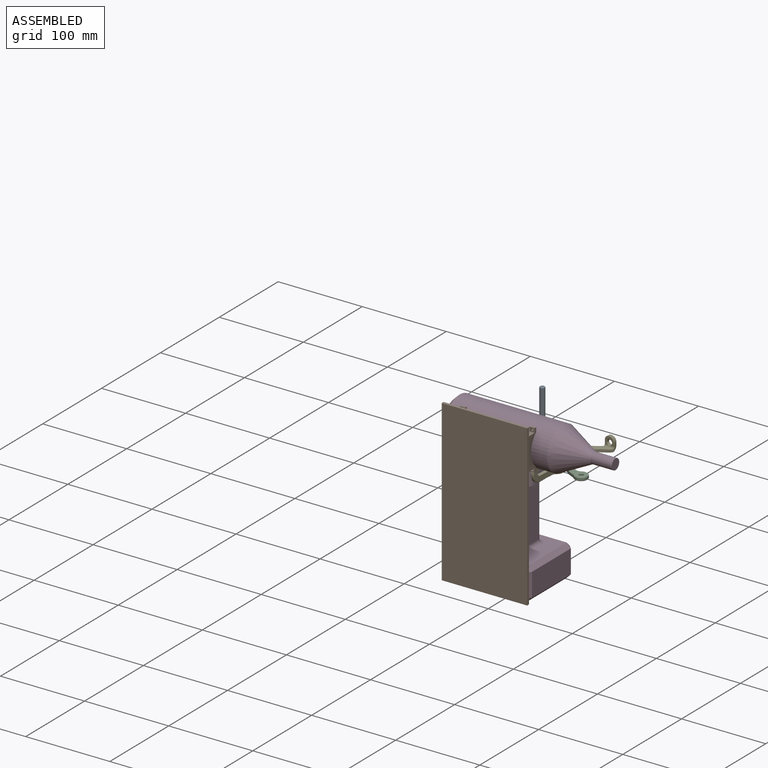
[diagram: assembled view]
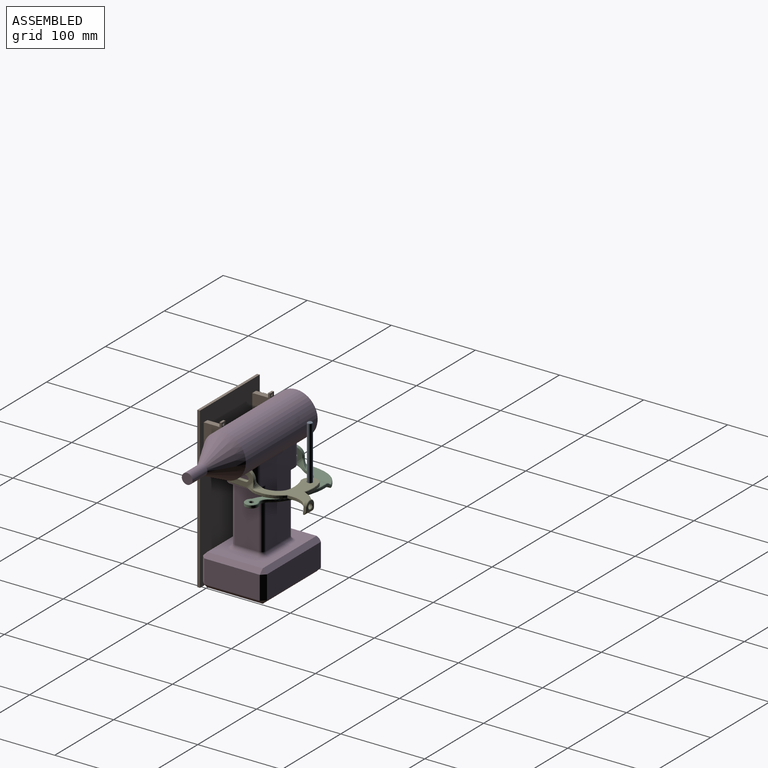
[diagram: assembled view, second angle]
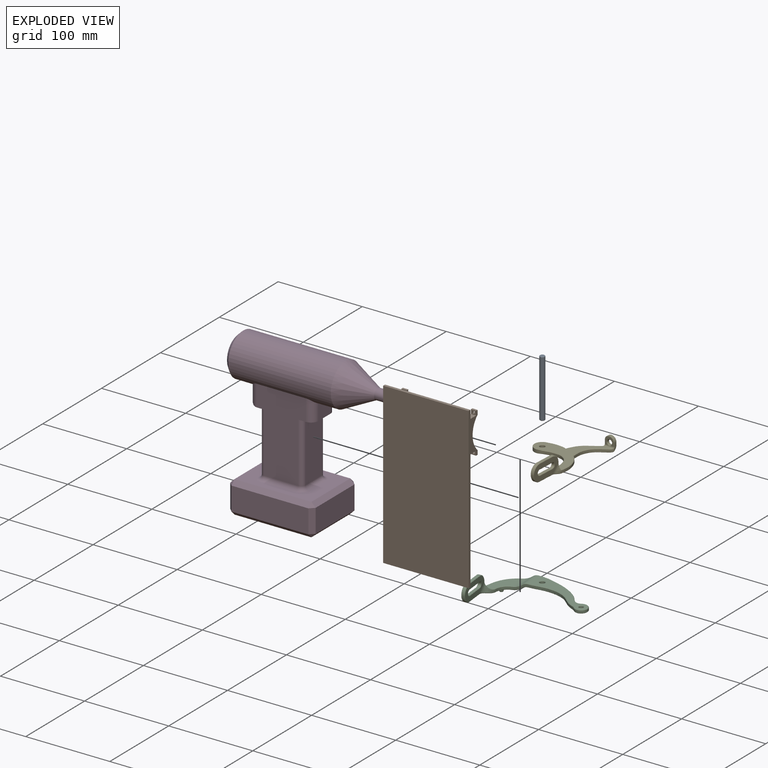
[diagram: exploded view]
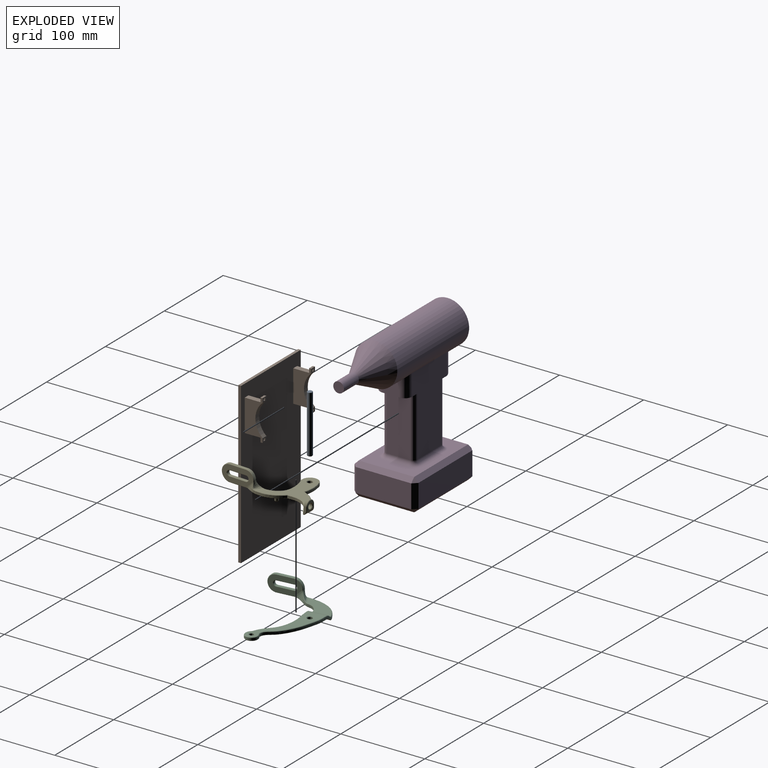
[diagram: exploded view, second angle]
ASSEMBLY  parts=5 mates=3
PART A: 5 faces, bbox 6x69x6 mm
  f0: plane 5x5mm, normal (0,1,0), area 19.6mm2, adj f1
  f1: cone r=2.75mm half-angle=45deg, axis (0,-1,0), area 12.2mm2, adj f0,f3
  f2: plane 5x5mm, normal (0,-1,0), area 19.6mm2, adj f4
  f3: cylinder r=3mm len=68mm, axis (0,-1,0), area 1281.8mm2, adj f1,f4
  f4: cone r=2.75mm half-angle=45deg, axis (0,1,0), area 12.2mm2, adj f2,f3
PART B: 44 faces, bbox 101.6x24.5x190.5 mm
  f0: plane 6.35x5.08mm, normal (0,1,0), area 25.8mm2, adj f10,f14,f15,f16,f21,f22,f23,f24
  f1: plane 6.35x5.08mm, normal (0,-1,0), area 25.8mm2, adj f10,f11,f15,f16,f21,f22,f23,f24
  f2: plane 6.35x5.08mm, normal (0,-1,0), area 25.8mm2, adj f12,f13,f15,f16,f17,f18,f19,f20
  f3: plane 6.35x5.08mm, normal (0,1,0), area 25.8mm2, adj f13,f14,f15,f16,f17,f18,f19,f20
  f4: plane 101.6x3.18mm, normal (0,0,-1), area 322.6mm2, adj f5,f7,f8,f9
  f5: plane 190.5x3.18mm, normal (1,0,0), area 604.8mm2, adj f4,f6,f8,f9
  f6: plane 101.6x3.18mm, normal (0,0,1), area 322.6mm2, adj f5,f7,f8,f9
  f7: plane 190.5x3.18mm, normal (-1,0,0), area 604.8mm2, adj f4,f6,f8,f9
  f8: plane 190.5x101.6mm, normal (0,-1,0), area 19354.8mm2, adj f4,f5,f6,f7
  f9: plane 190.5x101.6mm, normal (0,1,0), area 18870.9mm2, adj f4,f5,f6,f7,f11,f12,f15,f16
  f10: plane 6.35x2.54mm, normal (0,0,1), area 16.1mm2, adj f0,f1,f15,f16
  f11: plane 18.76x6.35mm, normal (0,0,1), area 119.1mm2, adj f1,f9,f15,f16
  f12: plane 18.76x6.35mm, normal (0,0,-1), area 119.1mm2, adj f2,f9,f15,f16
  f13: plane 6.35x2.54mm, normal (0,0,-1), area 16.1mm2, adj f2,f3,f15,f16
  f14: cylinder r=25.4mm len=38.1mm, axis (-1,0,0), area 273.6mm2, adj f0,f3,f15,f16
  f15: plane 48.26x21.3mm, normal (1,0,0), area 610.2mm2, adj f0,f1,f2,f3,f9,f10,f11,f12
  f16: plane 48.26x21.3mm, normal (-1,0,0), area 610.2mm2, adj f0,f1,f2,f3,f9,f10,f11,f12
  f17: plane 2.54x2.54mm, normal (1,0,0), area 6.5mm2, adj f2,f3,f18,f20
  f18: plane 2.54x2.54mm, normal (0,0,-1), area 6.5mm2, adj f2,f3,f17,f19
  f19: plane 2.54x2.54mm, normal (-1,0,0), area 6.5mm2, adj f2,f3,f18,f20
  f20: plane 2.54x2.54mm, normal (0,0,1), area 6.5mm2, adj f2,f3,f17,f19
  f21: plane 2.54x2.54mm, normal (1,0,0), area 6.5mm2, adj f0,f1,f22,f24
  f22: plane 2.54x2.54mm, normal (0,0,-1), area 6.5mm2, adj f0,f1,f21,f23
  f23: plane 2.54x2.54mm, normal (-1,0,0), area 6.5mm2, adj f0,f1,f22,f24
  f24: plane 2.54x2.54mm, normal (0,0,1), area 6.5mm2, adj f0,f1,f21,f23
  f25: plane 6.35x5.08mm, normal (0,1,0), area 25.8mm2, adj f26,f33,f34,f35,f36,f37,f38,f39
  f26: cylinder r=25.4mm len=38.1mm, axis (1,0,0), area 273.6mm2, adj f25,f27,f34,f35
  f27: plane 6.35x5.08mm, normal (0,1,0), area 25.8mm2, adj f26,f28,f34,f35,f40,f41,f42,f43
  f28: plane 6.35x2.54mm, normal (0,0,-1), area 16.1mm2, adj f27,f29,f34,f35
  f29: plane 6.35x5.08mm, normal (0,-1,0), area 25.8mm2, adj f28,f30,f34,f35,f40,f41,f42,f43
  f30: plane 18.76x6.35mm, normal (0,0,-1), area 119.1mm2, adj f9,f29,f34,f35
  f31: plane 18.76x6.35mm, normal (0,0,1), area 119.1mm2, adj f9,f32,f34,f35
  f32: plane 6.35x5.08mm, normal (0,-1,0), area 25.8mm2, adj f31,f33,f34,f35,f36,f37,f38,f39
  f33: plane 6.35x2.54mm, normal (0,0,1), area 16.1mm2, adj f25,f32,f34,f35
  f34: plane 48.26x21.3mm, normal (-1,0,0), area 610.2mm2, adj f9,f25,f26,f27,f28,f29,f30,f31
  f35: plane 48.26x21.3mm, normal (1,0,0), area 610.2mm2, adj f9,f25,f26,f27,f28,f29,f30,f31
  f36: plane 2.54x2.54mm, normal (-1,0,0), area 6.5mm2, adj f25,f32,f37,f39
  f37: plane 2.54x2.54mm, normal (0,0,1), area 6.5mm2, adj f25,f32,f36,f38
  f38: plane 2.54x2.54mm, normal (1,0,0), area 6.5mm2, adj f25,f32,f37,f39
  f39: plane 2.54x2.54mm, normal (0,0,-1), area 6.5mm2, adj f25,f32,f36,f38
  f40: plane 2.54x2.54mm, normal (-1,0,0), area 6.5mm2, adj f27,f29,f41,f43
  f41: plane 2.54x2.54mm, normal (0,0,1), area 6.5mm2, adj f27,f29,f40,f42
  f42: plane 2.54x2.54mm, normal (1,0,0), area 6.5mm2, adj f27,f29,f41,f43
  f43: plane 2.54x2.54mm, normal (0,0,-1), area 6.5mm2, adj f27,f29,f40,f42
PART C: 85 faces, bbox 120.5x29x85.4 mm
  f0: plane 20x3.1mm, normal (0,-1,0), area 62mm2, adj f1,f3,f8,f16
  f1: cylinder r=3mm len=6mm, axis (1,0,0), area 29.2mm2, adj f0,f2,f11,f17
  f2: plane 20x3.1mm, normal (0,1,0), area 62mm2, adj f1,f3,f10,f18
  f3: cylinder r=3mm len=6mm, axis (1,0,0), area 29.2mm2, adj f0,f2,f9,f19
  f4: cylinder r=2.5mm len=5mm, axis (0,1,0), area 47.1mm2, adj f13,f22
  f5: cylinder r=3mm len=6mm, axis (0,1,0), area 56.5mm2, adj f14,f23
  f6: cylinder r=10mm len=10mm, axis (1,0,0), area 48.7mm2, adj f12,f20,f21,f24
  f7: plane 20x0.5mm, normal (-0.71,-0.71,0), area 14.1mm2, adj f12,f24,f25,f26
  f8: plane 20x0.5mm, normal (-0.71,-0.71,0), area 14.1mm2, adj f0,f9,f11,f26
  f9: cone r=3.25mm half-angle=45deg, axis (-1,0,0), area 7.2mm2, adj f3,f8,f10,f26
  f10: plane 20x0.5mm, normal (-0.71,0.71,0), area 14.1mm2, adj f2,f9,f11,f26
  f11: cone r=3.25mm half-angle=45deg, axis (-1,0,0), area 7.2mm2, adj f1,f8,f10,f26
  f12: cone r=9.75mm half-angle=45deg, axis (1,0,0), area 11mm2, adj f6,f7,f26,f27
  f13: cone r=2.75mm half-angle=45deg, axis (0,-1,0), area 12.2mm2, adj f4,f32
  f14: cone r=3.25mm half-angle=45deg, axis (0,-1,0), area 14.4mm2, adj f5,f32
  f15: plane 20x0.5mm, normal (0.71,-0.71,0), area 14.1mm2, adj f20,f24,f28,f38
  f16: plane 20x0.5mm, normal (0.71,-0.71,0), area 14.1mm2, adj f0,f17,f19,f38
  f17: cone r=3.25mm half-angle=45deg, axis (1,0,0), area 7.2mm2, adj f1,f16,f18,f38
  f18: plane 20x0.5mm, normal (0.71,0.71,0), area 14.1mm2, adj f2,f17,f19,f38
  f19: cone r=3.25mm half-angle=45deg, axis (1,0,0), area 7.2mm2, adj f3,f16,f18,f38
  f20: cone r=9.75mm half-angle=45deg, axis (-1,0,0), area 11mm2, adj f6,f15,f38,f39
  f21: bspline ~12.1x10mm, area 80.7mm2, adj f6,f27,f37,f39
  f22: cone r=2.75mm half-angle=45deg, axis (0,1,0), area 12.2mm2, adj f4,f41
  f23: cone r=3.25mm half-angle=45deg, axis (0,1,0), area 14.4mm2, adj f5,f41
  f24: plane 20x3.1mm, normal (0,-1,0), area 62mm2, adj f6,f7,f15,f53
  f25: cone r=9.75mm half-angle=45deg, axis (1,0,0), area 21.7mm2, adj f7,f26,f53,f54
  f26: plane 39x19mm, normal (-1,0,0), area 463.9mm2, adj f7,f8,f9,f10,f11,f12,f25,f54
  f27: bspline ~10.5x2.95mm, area 7.8mm2, adj f12,f21,f42,f55
  f28: cone r=9.75mm half-angle=45deg, axis (-1,0,0), area 21.7mm2, adj f15,f38,f53,f56
  f29: plane 0.52x0.52mm, normal (-0.01,0.71,-0.71), area 0mm2, adj f41,f57,f58,f74
  f30: cone r=7.25mm half-angle=45deg, axis (0,-1,0), area 24.2mm2, adj f41,f49,f58,f59
  f31: cone r=7.25mm half-angle=45deg, axis (0,1,0), area 24.2mm2, adj f32,f48,f59,f60
  f32: plane 78.08x50.03mm, normal (0,-1,0), area 1011.3mm2, adj f13,f14,f31,f34,f48,f60
  f33: plane 0.51x0.51mm, normal (-0.01,-0.71,-0.71), area 0mm2, adj f60,f61
  f34: cylinder r=10.97mm len=21.7mm, axis (0,0,1), area 164mm2, adj f32,f36,f45,f46,f47,f61
  f35: plane 0.5x0.4mm, normal (-0.43,-0.55,-0.71), area 0mm2, adj f36,f61,f62,f74
  f36: cylinder r=15.15mm len=22.76mm, axis (0,0,1), area 220mm2, adj f34,f35,f37,f43,f44,f62
  f37: plane 39.84x24.3mm, normal (0,-1,0), area 471.6mm2, adj f21,f36,f42,f63,f64
  f38: plane 39x19mm, normal (1,0,0), area 463.9mm2, adj f15,f16,f17,f18,f19,f20,f28,f56
  f39: bspline ~10.5x8.78mm, area 10.6mm2, adj f20,f21,f64,f65
  f40: plane 0.52x0.42mm, normal (0.47,0.54,-0.7), area 0mm2, adj f57,f66,f74,f76
  f41: plane 78.1x50.04mm, normal (0,1,0), area 1011.4mm2, adj f22,f23,f29,f30,f49,f58,f68
  f42: bspline ~40.63x24.85mm, area 35.3mm2, adj f27,f37,f43,f69
  f43: cylinder r=695.36mm len=0.78mm, axis (0.34,0.56,0.76), area 0.2mm2, adj f36,f42,f44,f69
  f44: bspline ~10.17x4.05mm, area 8mm2, adj f36,f43,f45,f69
  f45: cylinder r=7.01mm len=0.53mm, axis (-0.37,-0.59,-0.72), area 0mm2, adj f34,f44,f46,f69
  f46: bspline ~7.11x2.96mm, area 5.2mm2, adj f34,f45,f47,f69
  f47: plane 0.5x0.5mm, normal (0.05,-0.71,0.71), area 0mm2, adj f34,f46,f48,f69
  f48: bspline ~67.72x37.92mm, area 56.8mm2, adj f31,f32,f47,f69
  f49: bspline ~67.74x37.92mm, area 56.7mm2, adj f30,f41,f50,f69
  f50: plane 0.51x0.51mm, normal (0.05,0.71,0.71), area 0mm2, adj f49,f51,f68,f69
  f51: cone r=0mm half-angle=56.2deg, axis (0.07,0.18,0.98), area 5.4mm2, adj f50,f52,f68,f69
  f52: plane 0.49x0.4mm, normal (0.4,0.56,0.72), area 0mm2, adj f51,f67,f68,f69
  f53: cylinder r=10mm len=20mm, axis (-1,0,0), area 97.4mm2, adj f24,f25,f28,f71
  f54: plane 20.5x0.5mm, normal (-0.71,0.71,0), area 14.3mm2, adj f25,f26,f71,f72
  f55: bspline ~12.99x11.49mm, area 63.2mm2, adj f26,f27,f69,f72
  f56: plane 20.5x0.5mm, normal (0.71,0.71,0), area 14.3mm2, adj f28,f38,f71,f73
  f57: bspline ~7.44x3.08mm, area 5.5mm2, adj f29,f40,f68,f74
  f58: bspline ~65.02x25.94mm, area 51.5mm2, adj f29,f30,f41,f74
  f59: cylinder r=7.5mm len=15mm, axis (0,1,0), area 105.8mm2, adj f30,f31,f69,f74
  f60: bspline ~65.01x25.96mm, area 51.5mm2, adj f31,f32,f33,f74
  f61: sphere r=16.29mm, area 5.2mm2, adj f33,f34,f35,f74
  f62: bspline ~10.17x4.04mm, area 7.4mm2, adj f35,f36,f63,f74
  f63: cylinder r=155.72mm len=0.56mm, axis (-0.41,-0.68,0.61), area 0.1mm2, adj f37,f62,f64,f74
  f64: bspline ~14.42x12.66mm, area 13.9mm2, adj f37,f39,f63,f74
  f65: bspline ~17.76x12.99mm, area 93.5mm2, adj f38,f39,f73,f74
  f66: cylinder r=27.18mm len=9.89mm, axis (0.36,0.6,0.72), area 7.4mm2, adj f40,f74,f75,f76
  f67: bspline ~9.84x3.92mm, area 7.2mm2, adj f52,f69,f70,f76
  f68: cylinder r=10.97mm len=21.7mm, axis (0,0,1), area 163.9mm2, adj f41,f50,f51,f52,f57,f76
  f69: extruded ~108.97x43.42mm, area 443.9mm2, adj f42,f43,f44,f45,f46,f47,f48,f49
  f70: plane 0.55x0.5mm, normal (-0.28,0.71,0.65), area 0.2mm2, adj f67,f69,f76,f77
  f71: plane 20x3.1mm, normal (0,1,0), area 62mm2, adj f53,f54,f56,f78
  f72: bspline ~12.24x4.5mm, area 9.3mm2, adj f54,f55,f77,f78
  f73: bspline ~18.26x7.38mm, area 14.5mm2, adj f56,f65,f78,f79
  f74: extruded ~93.12x25.29mm, area 324mm2, adj f29,f35,f40,f57,f58,f59,f60,f61
  f75: sphere r=504449.16mm, area 0.1mm2, adj f66,f74,f79,f80
  f76: cylinder r=15.15mm len=22.76mm, axis (0,0,1), area 220mm2, adj f40,f66,f67,f68,f70,f80
  f77: bspline ~40.66x24.93mm, area 35.3mm2, adj f69,f70,f72,f80
  f78: bspline ~17.94x11.76mm, area 100.4mm2, adj f71,f72,f73,f80
  f79: bspline ~14.42x12.64mm, area 13.8mm2, adj f73,f74,f75,f80
  f80: plane 39.84x24.3mm, normal (0,1,0), area 434.9mm2, adj f75,f76,f77,f78,f79,f81
  f81: torus R=3.42mm, axis (0,-1,0), area 26.1mm2, adj f80,f83
  f82: plane 2.29x2.29mm, normal (0,1,0), area 4.1mm2, adj f84
  f83: cone r=2.5mm half-angle=5deg, axis (0,-1,0), area 45.7mm2, adj f81,f84
  f84: torus R=1.15mm, axis (0,-1,0), area 16.4mm2, adj f82,f83
PART D: 57 faces, bbox 190.5x76.2x181.9 mm
  f0: plane 71.12x27.94mm, normal (1,0,0), area 1987.1mm2, adj f7,f42,f46,f48
  f1: plane 96.52x58.42mm, normal (0,1,0), area 4374.2mm2, adj f4,f7,f8,f39,f45,f48,f51,f52
  f2: plane 71.12x27.94mm, normal (-1,0,0), area 1987.1mm2, adj f4,f37,f39,f40
  f3: plane 96.52x58.42mm, normal (0,-1,0), area 4374.2mm2, adj f4,f7,f8,f37,f41,f42,f49,f53
  f4: plane 38.1x17.78mm, normal (0,0,-1), area 461mm2, adj f1,f2,f3,f6,f37,f39,f52,f53
  f5: plane 20.32x10.03mm, normal (1,0,0), area 174.9mm2, adj f8,f49,f50,f51
  f6: plane 20.32x18.92mm, normal (-1,0,0), area 355.5mm2, adj f4,f8,f52,f53
  f7: plane 38.1x8.89mm, normal (0,0,-1), area 156.2mm2, adj f0,f1,f3,f42,f48,f50
  f8: cylinder r=25.4mm len=121.92mm, axis (-1,0,0), area 16267.4mm2, adj f1,f3,f5,f6,f16,f49,f51,f52
  f9: plane 40.64x40.64mm, normal (1,0,0), area 1297.2mm2, adj f54
  f10: plane 91.44x66.04mm, normal (0,0,1), area 3185.4mm2, adj f17,f20,f24,f25,f38,f40,f41,f43
  f11: plane 91.44x27.94mm, normal (0,1,0), area 2554.8mm2, adj f20,f21,f30,f31
  f12: plane 66.04x27.94mm, normal (1,0,0), area 1845.2mm2, adj f25,f30,f33,f36
  f13: plane 91.44x27.94mm, normal (0,-1,0), area 2554.8mm2, adj f23,f24,f32,f33
  f14: plane 66.04x27.94mm, normal (-1,0,0), area 1845.2mm2, adj f17,f21,f22,f23
  f15: plane 91.44x66.04mm, normal (0,0,-1), area 6038.7mm2, adj f22,f31,f32,f36
  f16: cone r=25.4mm half-angle=26.6deg, axis (1,0,0), area 4248.9mm2, adj f8,f55
  f17: plane 66.04x5.08mm, normal (-0.71,0,0.71), area 474.4mm2, adj f10,f14,f18,f19
  f18: plane 5.08x5.08mm, normal (-0.58,0.58,0.58), area 22.3mm2, adj f17,f20,f21
  f19: plane 5.08x5.08mm, normal (-0.58,-0.58,0.58), area 22.3mm2, adj f17,f23,f24
  f20: plane 91.44x5.08mm, normal (0,0.71,0.71), area 656.9mm2, adj f10,f11,f18,f26
  f21: plane 27.94x5.08mm, normal (-0.71,0.71,0), area 200.7mm2, adj f11,f14,f18,f27
  f22: plane 66.04x5.08mm, normal (-0.71,0,-0.71), area 474.4mm2, adj f14,f15,f27,f28
  f23: plane 27.94x5.08mm, normal (-0.71,-0.71,0), area 200.7mm2, adj f13,f14,f19,f28
  f24: plane 91.44x5.08mm, normal (0,-0.71,0.71), area 656.9mm2, adj f10,f13,f19,f29
  f25: plane 66.04x5.08mm, normal (0.71,0,0.71), area 474.4mm2, adj f10,f12,f26,f29
  f26: plane 5.08x5.08mm, normal (0.58,0.58,0.58), area 22.3mm2, adj f20,f25,f30
  f27: plane 5.08x5.08mm, normal (-0.58,0.58,-0.58), area 22.3mm2, adj f21,f22,f31
  f28: plane 5.08x5.08mm, normal (-0.58,-0.58,-0.58), area 22.3mm2, adj f22,f23,f32
  f29: plane 5.08x5.08mm, normal (0.58,-0.58,0.58), area 22.3mm2, adj f24,f25,f33
  f30: plane 27.94x5.08mm, normal (0.71,0.71,0), area 200.7mm2, adj f11,f12,f26,f34
  f31: plane 91.44x5.08mm, normal (0,0.71,-0.71), area 656.9mm2, adj f11,f15,f27,f34
  f32: plane 91.44x5.08mm, normal (0,-0.71,-0.71), area 656.9mm2, adj f13,f15,f28,f35
  f33: plane 27.94x5.08mm, normal (0.71,-0.71,0), area 200.7mm2, adj f12,f13,f29,f35
  f34: plane 5.08x5.08mm, normal (0.58,0.58,-0.58), area 22.3mm2, adj f30,f31,f36
  f35: plane 5.08x5.08mm, normal (0.58,-0.58,-0.58), area 22.3mm2, adj f32,f33,f36
  f36: plane 66.04x5.08mm, normal (0.71,0,-0.71), area 474.4mm2, adj f12,f15,f34,f35
  f37: cylinder r=5.08mm len=71.12mm, axis (0,0,-1), area 567.5mm2, adj f2,f3,f4,f38
  f38: torus R=10.16mm, axis (0,0,-1), area 86.8mm2, adj f10,f37,f40,f41
  f39: cylinder r=5.08mm len=71.12mm, axis (0,0,1), area 567.5mm2, adj f1,f2,f4,f43
  f40: cylinder r=5.08mm len=27.94mm, axis (0,-1,0), area 223mm2, adj f2,f10,f38,f43
  f41: cylinder r=5.08mm len=40.64mm, axis (1,0,0), area 324.3mm2, adj f3,f10,f38,f44
  f42: cylinder r=5.08mm len=71.12mm, axis (0,0,1), area 567.5mm2, adj f0,f3,f7,f44
  f43: torus R=10.16mm, axis (0,0,-1), area 86.8mm2, adj f10,f39,f40,f45
  f44: torus R=10.16mm, axis (0,0,-1), area 86.8mm2, adj f10,f41,f42,f46
  f45: cylinder r=5.08mm len=40.64mm, axis (-1,0,0), area 324.3mm2, adj f1,f10,f43,f47
  f46: cylinder r=5.08mm len=27.94mm, axis (0,1,0), area 223mm2, adj f0,f10,f44,f47
  f47: torus R=10.16mm, axis (0,0,-1), area 86.8mm2, adj f10,f45,f46,f48
  f48: cylinder r=5.08mm len=71.12mm, axis (0,0,-1), area 567.5mm2, adj f0,f1,f7,f47
  f49: cylinder r=8.89mm len=25.4mm, axis (0,0,1), area 270.9mm2, adj f3,f5,f8,f50
  f50: cylinder r=8.89mm len=38.1mm, axis (0,1,0), area 441.8mm2, adj f5,f7,f49,f51
  f51: cylinder r=8.89mm len=25.4mm, axis (0,0,-1), area 270.9mm2, adj f1,f5,f8,f50
  f52: cylinder r=8.89mm len=25.4mm, axis (0,0,1), area 316mm2, adj f1,f4,f6,f8
  f53: cylinder r=8.89mm len=25.4mm, axis (0,0,-1), area 316mm2, adj f3,f4,f6,f8
  f54: cone r=20.32mm half-angle=45deg, axis (-1,0,0), area 1031.9mm2, adj f8,f9
  f55: cylinder r=6.35mm len=25.4mm, axis (1,0,0), area 1013.4mm2, adj f16,f56
  f56: plane 12.7x12.7mm, normal (-1,0,0), area 126.7mm2, adj f55
PART E: 105 faces, bbox 68.7x27.1x115.4 mm
  f0: plane 20x3mm, normal (0,-1,0), area 60mm2, adj f1,f3,f5,f12
  f1: cylinder r=3mm len=6mm, axis (-1,0,0), area 28.3mm2, adj f0,f2,f8,f13
  f2: plane 20x3mm, normal (0,1,0), area 60mm2, adj f1,f3,f7,f14
  f3: cylinder r=3mm len=6mm, axis (-1,0,0), area 28.3mm2, adj f0,f2,f6,f15
  f4: bspline ~12.02x6.19mm, area 12.6mm2, adj f18,f20,f21,f29
  f5: plane 20x0.5mm, normal (-0.71,-0.71,0), area 14.1mm2, adj f0,f6,f8,f34
  f6: cone r=3.25mm half-angle=45deg, axis (-1,0,0), area 7.2mm2, adj f3,f5,f7,f34
  f7: plane 20x0.5mm, normal (-0.71,0.71,0), area 14.1mm2, adj f2,f6,f8,f34
  f8: cone r=3.25mm half-angle=45deg, axis (-1,0,0), area 7.2mm2, adj f1,f5,f7,f34
  f9: plane 20x0.5mm, normal (-0.71,-0.71,0), area 14.1mm2, adj f22,f32,f33,f34
  f10: cone r=9.75mm half-angle=45deg, axis (-1,0,0), area 11mm2, adj f11,f31,f36,f37
  f11: plane 20x0.5mm, normal (0.71,-0.71,0), area 14.1mm2, adj f10,f32,f35,f37
  f12: plane 20x0.5mm, normal (0.71,-0.71,0), area 14.1mm2, adj f0,f13,f15,f37
  f13: cone r=3.25mm half-angle=45deg, axis (1,0,0), area 7.2mm2, adj f1,f12,f14,f37
  f14: plane 20x0.5mm, normal (0.71,0.71,0), area 14.1mm2, adj f2,f13,f15,f37
  f15: cone r=3.25mm half-angle=45deg, axis (1,0,0), area 7.2mm2, adj f3,f12,f14,f37
  f16: cone r=3.25mm half-angle=45deg, axis (0,0,-1), area 12mm2, adj f27,f28,f29,f41
  f17: cylinder r=6mm len=12mm, axis (0,0,1), area 54.8mm2, adj f21,f40,f44,f46
  f18: plane 4.08x0.64mm, normal (0.66,0,-0.75), area 3mm2, adj f4,f29,f30,f46
  f19: plane 3.82x0.49mm, normal (-0.77,0,-0.64), area 2.5mm2, adj f20,f26,f29,f49
  f20: cylinder r=12.6mm len=0.54mm, axis (-0.63,-0.17,0.76), area 0.1mm2, adj f4,f19,f29,f49
  f21: cylinder r=6mm len=12mm, axis (0.01,0,1), area 1.8mm2, adj f4,f17,f46,f49
  f22: cone r=9.75mm half-angle=45deg, axis (1,0,0), area 11mm2, adj f9,f31,f34,f50
  f23: bspline ~1.65x0.97mm, area 1.2mm2, adj f24,f30,f47,f52
  f24: cylinder r=2.31mm len=0.9mm, axis (0.5,0.85,-0.18), area 0.2mm2, adj f23,f38,f47,f52
  f25: cylinder r=1.82mm len=0.76mm, axis (-0.61,0.61,0.5), area 0.2mm2, adj f26,f48,f49,f52
  f26: bspline ~1.89x1.33mm, area 1.2mm2, adj f19,f25,f49,f52
  f27: cylinder r=4.44mm len=2.06mm, axis (0.36,-0.6,0.71), area 1.3mm2, adj f16,f28,f41,f52
  f28: cylinder r=4.44mm len=2.05mm, axis (-0.34,-0.61,0.71), area 1.3mm2, adj f16,f27,f41,f52
  f29: plane 11.12x9.53mm, normal (0,0,-1), area 54.2mm2, adj f4,f16,f18,f19,f20,f52
  f30: cylinder r=3.28mm len=0.58mm, axis (-0.75,0.01,-0.66), area 0.2mm2, adj f18,f23,f46,f52
  f31: cylinder r=10mm len=10mm, axis (1,0,0), area 47.1mm2, adj f10,f22,f32,f55
  f32: plane 20x3mm, normal (0,-1,0), area 60mm2, adj f9,f11,f31,f57
  f33: cone r=9.75mm half-angle=45deg, axis (1,0,0), area 21.7mm2, adj f9,f34,f57,f58
  f34: plane 39x19mm, normal (-1,0,0), area 463.9mm2, adj f5,f6,f7,f8,f9,f22,f33,f58
  f35: cone r=9.75mm half-angle=45deg, axis (-1,0,0), area 21.7mm2, adj f11,f37,f57,f60
  f36: bspline ~8.5x2.79mm, area 6.2mm2, adj f10,f55,f61,f62
  f37: plane 39x19mm, normal (1,0,0), area 463.9mm2, adj f10,f11,f12,f13,f14,f15,f35,f60
  f38: bspline ~1.66x1.38mm, area 1.4mm2, adj f24,f39,f52,f64
  f39: cylinder r=12.45mm len=1.03mm, axis (-0.23,0.52,-0.82), area 0.4mm2, adj f38,f51,f52,f64
  f40: plane 8.42x2.91mm, normal (-1,0,0), area 19.8mm2, adj f17,f43,f49,f69
  f41: cylinder r=3mm len=6mm, axis (0,0,-1), area 56.3mm2, adj f16,f27,f28,f42,f70,f71,f72
  f42: cone r=3.25mm half-angle=45deg, axis (0,0,1), area 10mm2, adj f41,f70,f72,f73
  f43: plane 3x0.5mm, normal (-0.71,0,0.71), area 2.1mm2, adj f40,f44,f69,f73
  f44: cone r=5.75mm half-angle=45deg, axis (0,0,-1), area 12.8mm2, adj f17,f43,f45,f73
  f45: plane 3x0.5mm, normal (0.71,0,0.71), area 2.1mm2, adj f44,f46,f73,f74
  f46: plane 8.5x3.03mm, normal (1,0,0), area 20.7mm2, adj f17,f18,f21,f30,f45,f47,f74
  f47: cylinder r=2mm len=4.77mm, axis (0,-1,0), area 4mm2, adj f23,f24,f46,f64,f75,f76
  f48: cylinder r=2.85mm len=1.7mm, axis (-0.68,0.66,0.32), area 0.8mm2, adj f25,f52,f53,f80
  f49: cylinder r=2mm len=9.06mm, axis (0,-1,0), area 4.9mm2, adj f19,f20,f21,f25,f26,f40,f67,f68
  f50: bspline ~9.02x8.5mm, area 9.2mm2, adj f22,f55,f59,f81
  f51: bspline ~35.55x20.54mm, area 30.5mm2, adj f39,f61,f64,f82
  f52: cylinder r=2mm len=12.47mm, axis (-1,0,0), area 32.9mm2, adj f23,f24,f25,f26,f27,f28,f29,f30
  f53: bspline ~0.79x0.75mm, area 0.4mm2, adj f48,f54,f80,f82
  f54: bspline ~26.75x24.46mm, area 25.8mm2, adj f53,f80,f82,f83
  f55: bspline ~9.02x8.9mm, area 60.4mm2, adj f31,f36,f50,f82
  f56: cone r=3.25mm half-angle=45deg, axis (0,-1,0), area 14.4mm2, adj f63,f82
  f57: cylinder r=10mm len=20mm, axis (1,0,0), area 94.2mm2, adj f32,f33,f35,f86
  f58: plane 20.5x0.5mm, normal (-0.71,0.71,0), area 14.3mm2, adj f33,f34,f86,f87
  f59: bspline ~17.79x10.99mm, area 86.3mm2, adj f34,f50,f85,f87
  f60: plane 20.5x0.5mm, normal (0.71,0.71,0), area 14.3mm2, adj f35,f37,f86,f88
  f61: bspline ~33.33x12.19mm, area 25.7mm2, adj f36,f51,f82,f89
  f62: bspline ~10.99x10.87mm, area 55.1mm2, adj f36,f37,f88,f89
  f63: cylinder r=3mm len=6mm, axis (0,-1,0), area 56.5mm2, adj f56,f90
  f64: extruded ~36.14x21.46mm, area 135.8mm2, adj f38,f39,f47,f51,f65,f77,f78,f89
  f65: cylinder r=25.78mm len=1.16mm, axis (0.73,-0.63,-0.24), area 0.5mm2, adj f64,f78,f91,f92
  f66: cylinder r=4.56mm len=0.74mm, axis (-0.77,-0.64,-0.01), area 0.1mm2, adj f67,f79,f80,f92
  f67: bspline ~1.37x1.07mm, area 1mm2, adj f49,f66,f68,f92
  f68: cylinder r=9.83mm len=0.89mm, axis (-0.65,-0.32,-0.69), area 0.2mm2, adj f49,f67,f69,f92
  f69: cone r=6.75mm half-angle=45deg, axis (1,0,0), area 4.7mm2, adj f40,f43,f68,f92
  f70: cylinder r=5.5mm len=0.73mm, axis (0.49,-0.52,-0.7), area 0.3mm2, adj f41,f42,f71,f92
  f71: bspline ~5.29x1.53mm, area 3.6mm2, adj f41,f70,f72,f92
  f72: cylinder r=5.49mm len=0.73mm, axis (-0.49,-0.52,-0.7), area 0.3mm2, adj f41,f42,f71,f92
  f73: plane 11x8.5mm, normal (0,0,1), area 48.1mm2, adj f42,f43,f44,f45,f92
  f74: cone r=6.75mm half-angle=45deg, axis (-1,0,0), area 4.8mm2, adj f45,f46,f75,f92
  f75: cylinder r=18.39mm len=0.91mm, axis (0.57,-0.21,-0.8), area 0.2mm2, adj f47,f74,f76,f92
  f76: cylinder r=2.04mm len=1.26mm, axis (-0.69,0.69,0.24), area 0.6mm2, adj f47,f75,f77,f92
  f77: cylinder r=1.9mm len=0.5mm, axis (0.62,-0.64,-0.45), area 0.1mm2, adj f64,f76,f78,f92
  f78: bspline ~2.83x2.65mm, area 2.2mm2, adj f64,f65,f77,f92
  f79: bspline ~2.56x2.31mm, area 2.2mm2, adj f66,f80,f92,f93
  f80: extruded ~27.43x25.34mm, area 114.5mm2, adj f48,f49,f53,f54,f66,f79,f84,f93
  f81: bspline ~37.44x20.5mm, area 33.7mm2, adj f50,f82,f85,f96
  f82: plane 67.58x66.08mm, normal (0,-1,0), area 1269mm2, adj f51,f52,f53,f54,f55,f56,f61,f81
  f83: bspline ~25.48x3.15mm, area 16.7mm2, adj f54,f82,f84,f96
  f84: extruded ~24.53x3mm, area 75.1mm2, adj f80,f83,f95,f96
  f85: extruded ~36.8x19.55mm, area 147.1mm2, adj f59,f81,f96,f97
  f86: plane 20x3mm, normal (0,1,0), area 60mm2, adj f57,f58,f60,f98
  f87: bspline ~18.29x4.53mm, area 12.4mm2, adj f58,f59,f97,f98
  f88: bspline ~11.72x2.79mm, area 8.3mm2, adj f60,f62,f98,f99
  f89: extruded ~33.14x11.63mm, area 110mm2, adj f61,f62,f64,f99
  f90: cone r=3.25mm half-angle=45deg, axis (0,1,0), area 14.4mm2, adj f63,f100
  f91: bspline ~34.63x19.36mm, area 29.4mm2, adj f64,f65,f99,f100
  f92: cylinder r=7mm len=13.7mm, axis (-1,0,0), area 114mm2, adj f65,f66,f67,f68,f69,f70,f71,f72
  f93: cylinder r=43.03mm len=1.01mm, axis (0.21,-0.52,0.83), area 0.4mm2, adj f79,f80,f94,f100
  f94: bspline ~25.76x23.24mm, area 24.7mm2, adj f80,f93,f95,f100
  f95: bspline ~25.48x3.15mm, area 16.8mm2, adj f84,f94,f96,f100
  f96: cylinder r=9.5mm len=19mm, axis (0,-1,0), area 121.3mm2, adj f81,f82,f83,f84,f85,f95,f97,f100
  f97: bspline ~37.43x20.5mm, area 33.7mm2, adj f85,f87,f96,f100
  f98: bspline ~17.95x9.46mm, area 86.5mm2, adj f86,f87,f88,f100
  f99: bspline ~33.33x12.19mm, area 25.7mm2, adj f88,f89,f91,f100
  f100: plane 66.59x64.78mm, normal (0,1,0), area 1221.9mm2, adj f90,f91,f92,f93,f94,f95,f96,f97
  f101: torus R=3.42mm, axis (0,-1,0), area 26.1mm2, adj f100,f103
  f102: plane 2.29x2.29mm, normal (0,1,0), area 4.1mm2, adj f104
  f103: cone r=2.5mm half-angle=5deg, axis (0,-1,0), area 45.7mm2, adj f101,f104
  f104: torus R=1.15mm, axis (0,-1,0), area 16.4mm2, adj f102,f103
PLACE A rot(axis=(1,0,0),90deg) t=(32.19,45.98,55.91)mm
PLACE B t=(32.19,-11.17,9.06)mm fixed
PLACE C rot(axis=(-1,-0.05,0.05),90.2deg) t=(95.75,21.1,10.99)mm
PLACE D rot(axis=(0,0,1),180deg) t=(32.19,-11.17,9.06)mm
PLACE E rot(axis=(-1,0.03,-0.03),90deg) t=(-17.46,39.55,10.99)mm
MATE revolute E.f56 <-> C.f23  axis (0,0,-1) through (32.19,45.98,10.99)mm
MATE revolute E.f56 <-> A.f1  axis (0,0,1) through (32.19,45.98,14.99)mm
MATE fastened D.f8 <-> B.f14  axis (-1,0,0) through (-26.23,-11.17,51.26)mm
